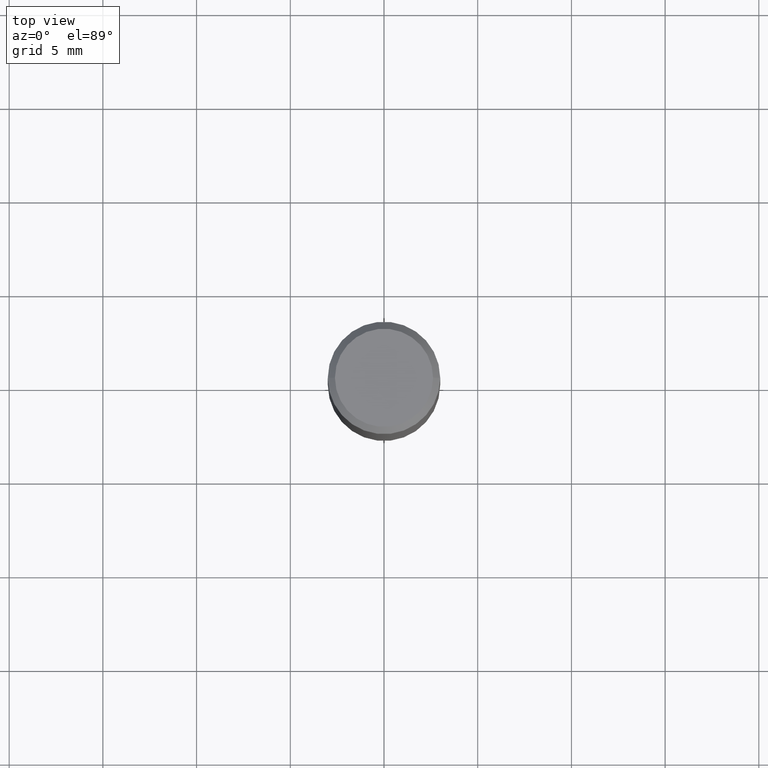
[diagram: clean part render]
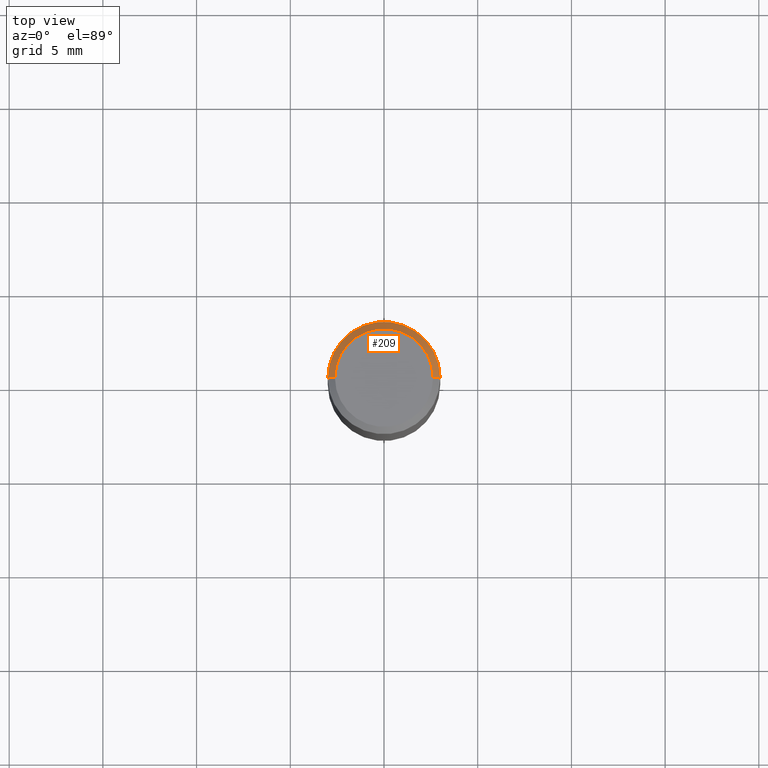
[diagram: same view with one face highlighted and labeled with its STEP entity id]
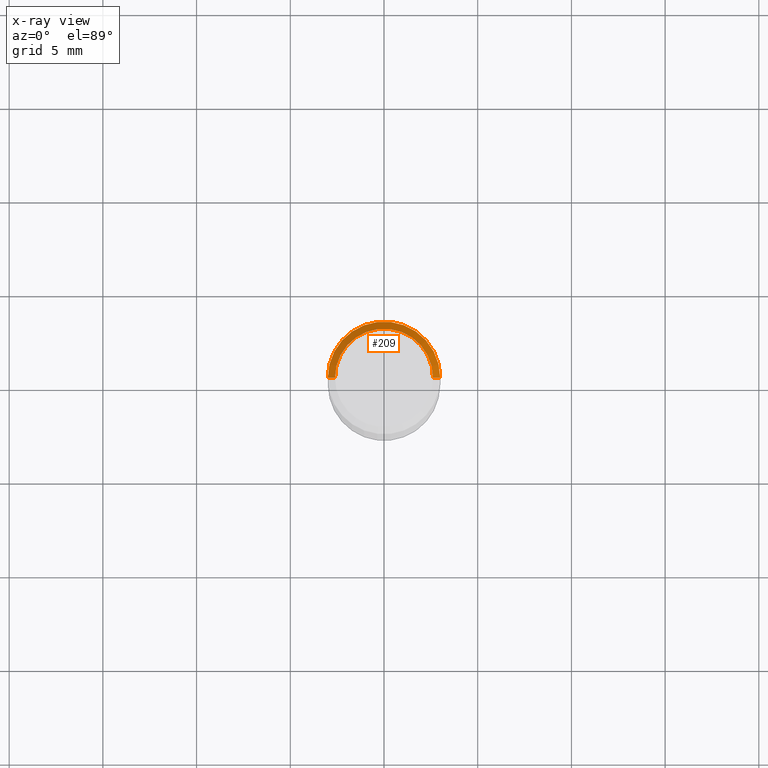
[diagram: x-ray of the same camera — body ghosted, the highlighted face saturated]
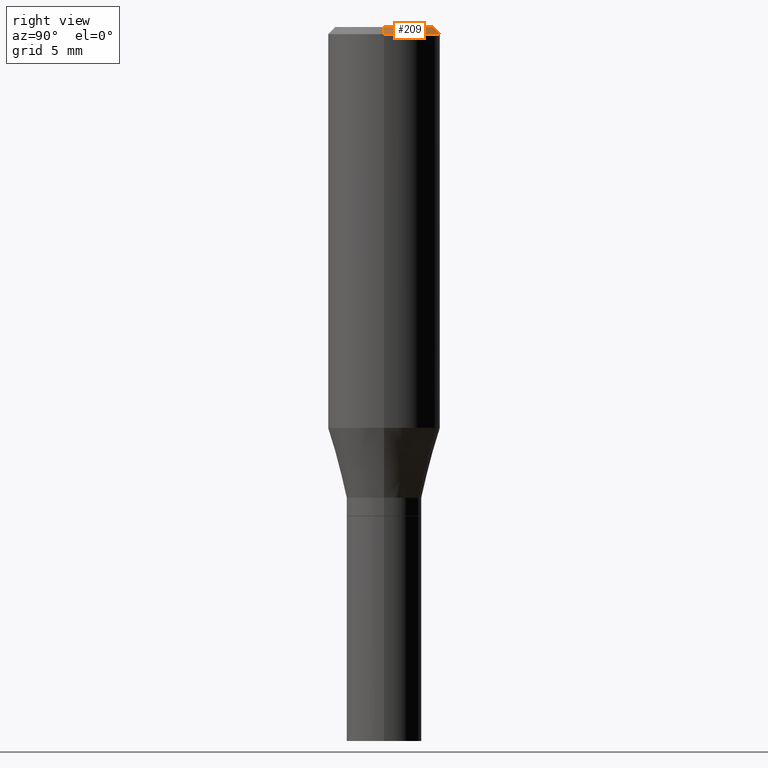
[diagram: same view with one face highlighted and labeled with its STEP entity id]
A machine part, top view. The second image highlights one B-rep face of the part: STEP entity #209.
The next image is the same camera in x-ray: the body ghosted, the highlighted face saturated — about 0% of this face is hidden behind the body in this view.
A second angle (right view) of the same face is appended — the face is thin or edge-on in the first view.
In plain terms, the highlighted conical surface has half-angle 45 deg.
Its self-contained STEP definition (entity closure, byte-faithful):
#2 = AXIS2_PLACEMENT_3D ( 'NONE', #320, #461, #108 ) ;
#27 = ORIENTED_EDGE ( 'NONE', *, *, #452, .T. ) ;
#28 = DIRECTION ( 'NONE',  ( -1.000000000000000000, 6.982962677686266711E-15, 0.000000000000000000 ) ) ;
#47 = VERTEX_POINT ( 'NONE', #295 ) ;
#54 = AXIS2_PLACEMENT_3D ( 'NONE', #418, #102, #272 ) ;
#102 = DIRECTION ( 'NONE',  ( -2.445468806185136597E-29, 3.491481338843145583E-15, 1.000000000000000000 ) ) ;
#105 = CARTESIAN_POINT ( 'NONE',  ( 3.668203209277697643E-31, -5.237222008264707922E-17, -0.01499999999999996995 ) ) ;
#108 = DIRECTION ( 'NONE',  ( 1.000000000000000000, -6.982962677686266711E-15, 0.000000000000000000 ) ) ;
#113 = VERTEX_POINT ( 'NONE', #307 ) ;
#115 = DIRECTION ( 'NONE',  ( 0.7071067811865446862, -7.319954787623245001E-15, -0.7071067811865503483 ) ) ;
#120 = EDGE_CURVE ( 'NONE', #113, #423, #414, .T. ) ;
#128 = ORIENTED_EDGE ( 'NONE', *, *, #120, .F. ) ;
#134 = FACE_OUTER_BOUND ( 'NONE', #366, .T. ) ;
#137 = CARTESIAN_POINT ( 'NONE',  ( -0.1180999999999999966, 7.723156721521009862E-16, -0.01499999999999996995 ) ) ;
#149 = CARTESIAN_POINT ( 'NONE',  ( -0.1180999999999999966, -6.571998215305863288E-16, -0.01499999999999996995 ) ) ;
#165 = DIRECTION ( 'NONE',  ( -0.7071067811865446862, 2.468850131082227084E-15, -0.7071067811865503483 ) ) ;
#209 = ADVANCED_FACE ( 'NONE', ( #134 ), #383, .T. ) ;
#227 = EDGE_CURVE ( 'NONE', #284, #113, #257, .T. ) ;
#241 = VECTOR ( 'NONE', #115, 39.37007874015748143 ) ;
#254 = LINE ( 'NONE', #432, #241 ) ;
#257 = CIRCLE ( 'NONE', #54, 0.1030999999999999833 ) ;
#262 = ORIENTED_EDGE ( 'NONE', *, *, #227, .F. ) ;
#272 = DIRECTION ( 'NONE',  ( 1.000000000000000000, -6.982962677686268288E-15, 4.883331232093010009E-29 ) ) ;
#284 = VERTEX_POINT ( 'NONE', #358 ) ;
#295 = CARTESIAN_POINT ( 'NONE',  ( 0.1180999999999999966, -8.770601123173952432E-16, -0.01499999999999996995 ) ) ;
#298 = CIRCLE ( 'NONE', #2, 0.1180999999999999966 ) ;
#307 = CARTESIAN_POINT ( 'NONE',  ( -0.1030999999999999833, 7.461295621107778410E-16, 1.600767391562869831E-16 ) ) ;
#310 = VECTOR ( 'NONE', #165, 39.37007874015748143 ) ;
#320 = CARTESIAN_POINT ( 'NONE',  ( 3.668203209277697643E-31, -5.237222008264707922E-17, -0.01499999999999996995 ) ) ;
#358 = CARTESIAN_POINT ( 'NONE',  ( 0.1030999999999999833, -7.849571885948545803E-16, 1.600767391562973369E-16 ) ) ;
#366 = EDGE_LOOP ( 'NONE', ( #262, #416, #27, #128 ) ) ;
#383 = CONICAL_SURFACE ( 'NONE', #443, 0.1180999999999999966, 0.7853981633974442822 ) ;
#385 = DIRECTION ( 'NONE',  ( 2.445468806185136597E-29, -3.491481338843145583E-15, -1.000000000000000000 ) ) ;
#414 = LINE ( 'NONE', #137, #310 ) ;
#416 = ORIENTED_EDGE ( 'NONE', *, *, #433, .T. ) ;
#418 = CARTESIAN_POINT ( 'NONE',  ( -3.914626722025471411E-45, 5.589049475470557669E-31, 1.600767391562921107E-16 ) ) ;
#423 = VERTEX_POINT ( 'NONE', #149 ) ;
#432 = CARTESIAN_POINT ( 'NONE',  ( 0.1180999999999999966, -8.625970336194650129E-16, -0.01499999999999996995 ) ) ;
#433 = EDGE_CURVE ( 'NONE', #284, #47, #254, .T. ) ;
#443 = AXIS2_PLACEMENT_3D ( 'NONE', #105, #385, #28 ) ;
#452 = EDGE_CURVE ( 'NONE', #47, #423, #298, .T. ) ;
#461 = DIRECTION ( 'NONE',  ( -2.445468806185136597E-29, 3.491481338843145583E-15, 1.000000000000000000 ) ) ;